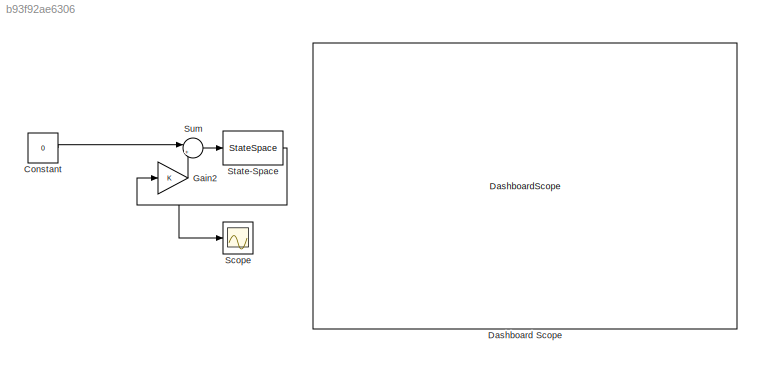
MODEL slx_b93f92ae6306
KIND model
CONFIG AbsTol = auto
CONFIG EnableMultiTasking = off
CONFIG FixedStep = auto
CONFIG MaxStep = auto
CONFIG MinStep = auto
CONFIG RelTol = 1e-3
CONFIG SampleTimeConstraint = Unconstrained
CONFIG SolverName = VariableStepAuto
CONFIG StartTime = 0.0
CONFIG StopTime = 10.0
BLOCK [Constant] Constant
  Value = 0
BLOCK [DashboardScope] Dashboard Scope
BLOCK [Gain] Gain2
  Gain = K
  Multiplication = Matrix(K*u)
BLOCK [Scope] Scope
  ActiveDisplayYMaximum = 0.027144657722210478
  ActiveDisplayYMinimum = -0.026259170738630138
  ContainerLayout = {"WindowBounds":[1087,1385,340,743]}
  Floating = off
  GraphicalSettings = {"Style":{"BackgroundColor":[0.12941176470588237,0.12941176470588237,0.12941176470588237],"AxesColor":[0.07058823529411765,0.07058823529411765,0.07058823529411765],"LabelsColor":[0.8509803921568627,0.8509803921568627,0.8509803921568627],"PreserveColors":false,"Visible":[true,true,true],"LineStyle":["-","-","-"],"LineWidth":[1.5,1.5,1.5],"BarWidth":[0.9,0.9,0.9],"LineColor":["auto","auto","auto"],"...<+2215ch>
  MultipleDisplayCache = [{"MaxYLimMag":0.031240464533593092,"MaxYLimReal":0.027144657722210478,"MinYLimMag":0,"MinYLimReal":-0.026259170738630138,"PlotAsMagnitudePhase":false,"ShowGrid":true,"ShowLegend":true,"Title":"%<SignalLabel>","YLabel":""}]
  NumInputPorts = 1
  ShowLegend = on
  Visible = on
  WasSavedAsWebScope = on
BLOCK [StateSpace] State-Space
  A = A
  B = B
  C = C
  ContinuousStateAttributes = 'pos'
  D = D
  InitialCondition = [0.1,0,0]
BLOCK [Sum] Sum
  Inputs = |+-
LINE Constant:1 -> Sum:1
LINE Gain2:1 -> Sum:2
NET State-Space:1 -> Gain2:1, Scope:1
LINE Sum:1 -> State-Space:1
note: NET lines group one-source signal fan-out (src -> all destinations, sorted); 1:1 wires keep LINE
